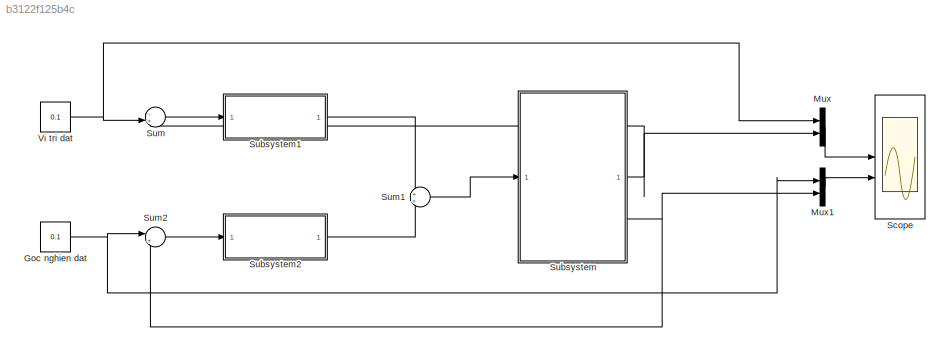
MODEL slx_b3122f125b4c
KIND model
CONFIG AbsTol = auto
CONFIG EnableMultiTasking = off
CONFIG FixedStep = auto
CONFIG MaxStep = auto
CONFIG MinStep = auto
CONFIG RelTol = 1e-3
CONFIG SampleTimeConstraint = Unconstrained
CONFIG SolverName = ode45
CONFIG StartTime = 0.0
CONFIG StopTime = 20
BLOCK [Constant] Goc nghien dat
  Value = 0.1
BLOCK [Mux] Mux
  DisplayOption = bar
  Inputs = 2
BLOCK [Mux] Mux1
  DisplayOption = bar
  Inputs = 2
BLOCK [Scope] Scope
  Floating = off
  NumInputPorts = 2
  ScopeSpecificationString = Simulink.scopes.TimeScopeBlockCfg('CurrentConfiguration', extmgr.ConfigurationSet(extmgr.Configuration('Core','General UI',true),extmgr.Configuration('Core','Source UI',true),extmgr.Configuration('Sources','WiredSimulink',true),extmgr.Configuration('Visuals','Time Domain',true,'SerializedDisplays',{struct('MinYLimReal','-0.02251','MaxYLimReal','0.20257','YLabelReal','','MinYLimMag','0.00000','MaxY...<+2217ch>
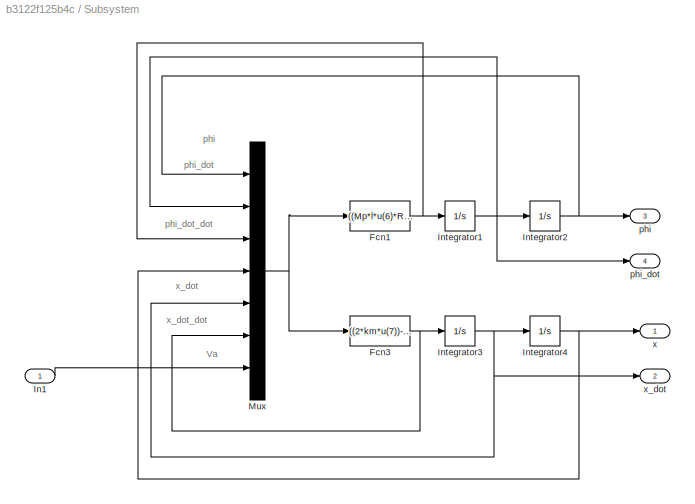
BLOCK [SubSystem] Subsystem
BLOCK [Fcn] Subsystem/Fcn1
  Expr = ((Mp*l*u(6)*R*r)+(2*km*ke*u(5))+(2*km*u(7)*r)-(Mp*g*l*u(1)*R*r))/(R*r*(Ip+Mp*l*l))
BLOCK [Fcn] Subsystem/Fcn3
  Expr = ((2*km*u(7))-(2*km*ke*u(5))-(Mp*l*u(3)*R*r))/(R*r*2*(Mw+(Iw/(r^2))+Mp))
BLOCK [Inport] Subsystem/In1
BLOCK [Integrator] Subsystem/Integrator1
BLOCK [Integrator] Subsystem/Integrator2
BLOCK [Integrator] Subsystem/Integrator3
BLOCK [Integrator] Subsystem/Integrator4
BLOCK [Mux] Subsystem/Mux
  DisplayOption = bar
  Inputs = 7
BLOCK [Outport] Subsystem/phi
  Port = 3
  VectorParamsAs1DForOutWhenUnconnected = off
BLOCK [Outport] Subsystem/phi_dot
  Port = 4
  VectorParamsAs1DForOutWhenUnconnected = off
BLOCK [Outport] Subsystem/x
  VectorParamsAs1DForOutWhenUnconnected = off
BLOCK [Outport] Subsystem/x_dot
  Port = 2
  VectorParamsAs1DForOutWhenUnconnected = off
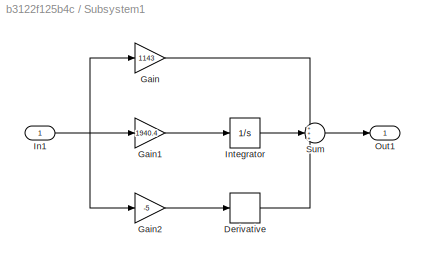
BLOCK [SubSystem] Subsystem1
BLOCK [Derivative] Subsystem1/Derivative
BLOCK [Gain] Subsystem1/Gain
  Gain = 1143
BLOCK [Gain] Subsystem1/Gain1
  Gain = 1940.4
BLOCK [Gain] Subsystem1/Gain2
  Gain = -5
BLOCK [Inport] Subsystem1/In1
BLOCK [Integrator] Subsystem1/Integrator
BLOCK [Outport] Subsystem1/Out1
  VectorParamsAs1DForOutWhenUnconnected = off
BLOCK [Sum] Subsystem1/Sum
  Inputs = +++
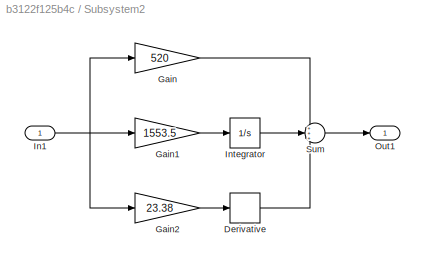
BLOCK [SubSystem] Subsystem2
BLOCK [Derivative] Subsystem2/Derivative
BLOCK [Gain] Subsystem2/Gain
  Gain = 520
BLOCK [Gain] Subsystem2/Gain1
  Gain = 1553.5
BLOCK [Gain] Subsystem2/Gain2
  Gain = 23.38
BLOCK [Inport] Subsystem2/In1
BLOCK [Integrator] Subsystem2/Integrator
BLOCK [Outport] Subsystem2/Out1
  VectorParamsAs1DForOutWhenUnconnected = off
BLOCK [Sum] Subsystem2/Sum
  Inputs = +++
BLOCK [Sum] Sum
  Inputs = -+|
BLOCK [Sum] Sum1
BLOCK [Sum] Sum2
  Inputs = |+-
BLOCK [Constant] Vi tri dat 
  Value = 0.1
ANNOTATION Subsystem: Va
ANNOTATION Subsystem: phi
ANNOTATION Subsystem: phi_dot
ANNOTATION Subsystem: phi_dot_dot
ANNOTATION Subsystem: x_dot
ANNOTATION Subsystem: x_dot_dot
NET Goc nghien dat:1 -> Mux1:1, Sum2:1
LINE Mux1:1 -> Scope:2
LINE Mux:1 -> Scope:1
NET Subsystem/Fcn1:1 -> Subsystem/Integrator1:1, Subsystem/Mux:3
NET Subsystem/Fcn3:1 -> Subsystem/Integrator3:1, Subsystem/Mux:6
LINE Subsystem/In1:1 -> Subsystem/Mux:7
NET Subsystem/Integrator1:1 -> Subsystem/Integrator2:1, Subsystem/Mux:2, Subsystem/phi_dot:1
NET Subsystem/Integrator2:1 -> Subsystem/Mux:1, Subsystem/phi:1
NET Subsystem/Integrator3:1 -> Subsystem/Integrator4:1, Subsystem/Mux:5, Subsystem/x_dot:1
NET Subsystem/Integrator4:1 -> Subsystem/Mux:4, Subsystem/x:1
NET Subsystem/Mux:1 -> Subsystem/Fcn1:1, Subsystem/Fcn3:1
LINE Subsystem1/Derivative:1 -> Subsystem1/Sum:3
LINE Subsystem1/Gain1:1 -> Subsystem1/Integrator:1
LINE Subsystem1/Gain2:1 -> Subsystem1/Derivative:1
LINE Subsystem1/Gain:1 -> Subsystem1/Sum:1
NET Subsystem1/In1:1 -> Subsystem1/Gain1:1, Subsystem1/Gain2:1, Subsystem1/Gain:1
LINE Subsystem1/Integrator:1 -> Subsystem1/Sum:2
LINE Subsystem1/Sum:1 -> Subsystem1/Out1:1
LINE Subsystem1:1 -> Sum1:1
LINE Subsystem2/Derivative:1 -> Subsystem2/Sum:3
LINE Subsystem2/Gain1:1 -> Subsystem2/Integrator:1
LINE Subsystem2/Gain2:1 -> Subsystem2/Derivative:1
LINE Subsystem2/Gain:1 -> Subsystem2/Sum:1
NET Subsystem2/In1:1 -> Subsystem2/Gain1:1, Subsystem2/Gain2:1, Subsystem2/Gain:1
LINE Subsystem2/Integrator:1 -> Subsystem2/Sum:2
LINE Subsystem2/Sum:1 -> Subsystem2/Out1:1
LINE Subsystem2:1 -> Sum1:2
NET Subsystem:1 -> Mux:2, Sum:1
NET Subsystem:3 -> Mux1:2, Sum2:2
LINE Sum1:1 -> Subsystem:1
LINE Sum2:1 -> Subsystem2:1
LINE Sum:1 -> Subsystem1:1
NET Vi tri dat :1 -> Mux:1, Sum:2
note: NET lines group one-source signal fan-out (src -> all destinations, sorted); 1:1 wires keep LINE
